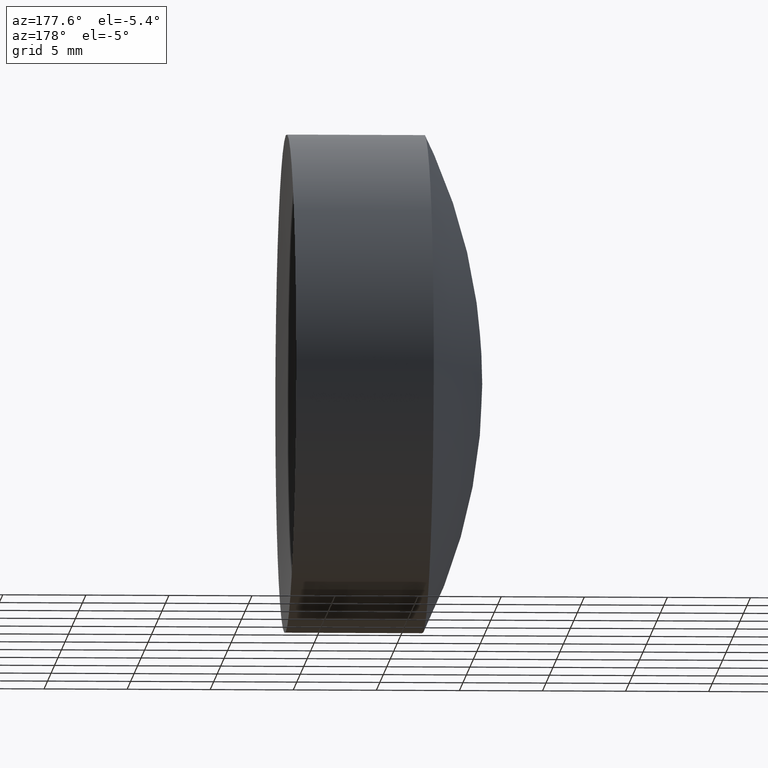
[diagram: clean part render]
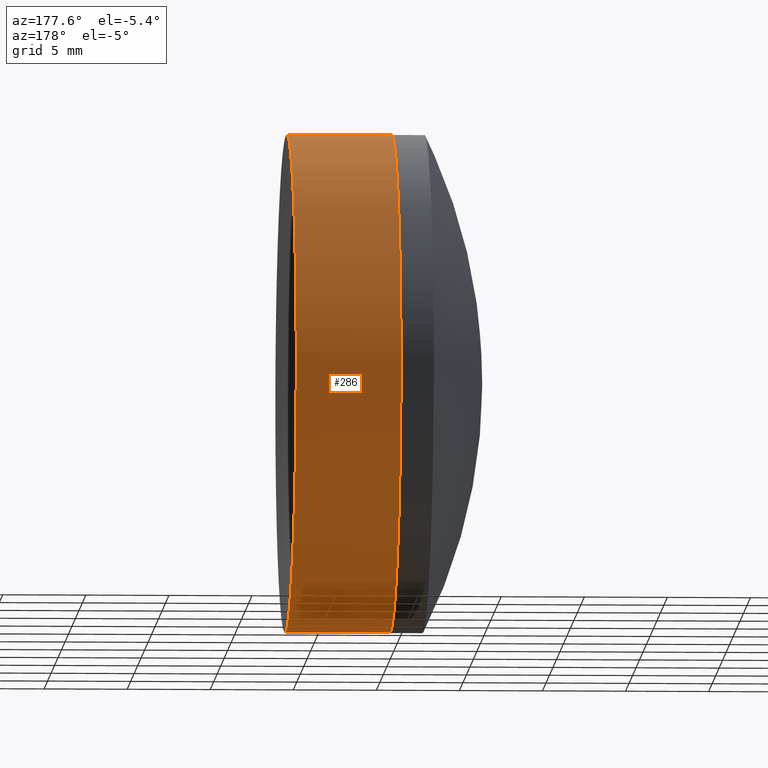
[diagram: same view with one face highlighted and labeled with its STEP entity id]
A machine part, auxiliary view. The second image highlights one B-rep face of the part: STEP entity #286.
In plain terms, the highlighted cylindrical surface (partial cylindrical patch) has radius 15 mm, axis along (-1, -0, -0).
Its self-contained STEP definition (entity closure, byte-faithful):
#2 = FACE_OUTER_BOUND ( 'NONE', #238, .T. ) ;
#21 = CARTESIAN_POINT ( 'NONE',  ( 106.7084432076796400, 0.0000000000000000000, 0.0000000000000000000 ) ) ;
#53 = DIRECTION ( 'NONE',  ( 0.0000000000000000000, 0.0000000000000000000, 1.000000000000000000 ) ) ;
#71 = CIRCLE ( 'NONE', #112, 15.00000000000000900 ) ;
#88 = CARTESIAN_POINT ( 'NONE',  ( -0.5519199926577972300, 0.0000000000000000000, 15.00000000000000900 ) ) ;
#93 = CARTESIAN_POINT ( 'NONE',  ( -0.5519199926577972300, 0.0000000000000000000, 0.0000000000000000000 ) ) ;
#101 = CARTESIAN_POINT ( 'NONE',  ( 100.3989811747571500, 0.0000000000000000000, 0.0000000000000000000 ) ) ;
#105 = DIRECTION ( 'NONE',  ( -1.000000000000000000, -0.0000000000000000000, -0.0000000000000000000 ) ) ;
#106 = DIRECTION ( 'NONE',  ( -1.000000000000000000, -0.0000000000000000000, -0.0000000000000000000 ) ) ;
#112 = AXIS2_PLACEMENT_3D ( 'NONE', #21, #106, #53 ) ;
#117 = CARTESIAN_POINT ( 'NONE',  ( 106.7084432076796400, -1.836970198721022100E-015, 14.99999999999994000 ) ) ;
#118 = AXIS2_PLACEMENT_3D ( 'NONE', #101, #253, #254 ) ;
#122 = DIRECTION ( 'NONE',  ( -1.000000000000000000, -0.0000000000000000000, -0.0000000000000000000 ) ) ;
#124 = AXIS2_PLACEMENT_3D ( 'NONE', #93, #197, #217 ) ;
#127 = ORIENTED_EDGE ( 'NONE', *, *, #303, .F. ) ;
#129 = VERTEX_POINT ( 'NONE', #153 ) ;
#145 = VECTOR ( 'NONE', #105, 1000.000000000000000 ) ;
#153 = CARTESIAN_POINT ( 'NONE',  ( 100.3989811747571500, 1.836970198721031200E-015, -15.00000000000001100 ) ) ;
#159 = EDGE_CURVE ( 'NONE', #236, #336, #258, .T. ) ;
#169 = CIRCLE ( 'NONE', #118, 15.00000000000000900 ) ;
#170 = ORIENTED_EDGE ( 'NONE', *, *, #249, .T. ) ;
#172 = CARTESIAN_POINT ( 'NONE',  ( 100.3989811747571500, 0.0000000000000000000, 15.00000000000001100 ) ) ;
#173 = VERTEX_POINT ( 'NONE', #276 ) ;
#197 = DIRECTION ( 'NONE',  ( -1.000000000000000000, -0.0000000000000000000, -0.0000000000000000000 ) ) ;
#198 = ORIENTED_EDGE ( 'NONE', *, *, #159, .F. ) ;
#217 = DIRECTION ( 'NONE',  ( 0.0000000000000000000, 0.0000000000000000000, 1.000000000000000000 ) ) ;
#236 = VERTEX_POINT ( 'NONE', #117 ) ;
#238 = EDGE_LOOP ( 'NONE', ( #312, #170, #127, #198 ) ) ;
#249 = EDGE_CURVE ( 'NONE', #173, #129, #328, .T. ) ;
#253 = DIRECTION ( 'NONE',  ( -1.000000000000000000, -0.0000000000000000000, -0.0000000000000000000 ) ) ;
#254 = DIRECTION ( 'NONE',  ( 0.0000000000000000000, 0.0000000000000000000, 1.000000000000000000 ) ) ;
#258 = LINE ( 'NONE', #88, #145 ) ;
#264 = VECTOR ( 'NONE', #122, 1000.000000000000000 ) ;
#276 = CARTESIAN_POINT ( 'NONE',  ( 106.7084432076796400, 0.0000000000000000000, -14.99999999999994000 ) ) ;
#286 = ADVANCED_FACE ( 'NONE', ( #2 ), #314, .T. ) ;
#297 = CARTESIAN_POINT ( 'NONE',  ( -0.5519199926577972300, 1.836970198721030800E-015, -15.00000000000000900 ) ) ;
#303 = EDGE_CURVE ( 'NONE', #336, #129, #169, .T. ) ;
#312 = ORIENTED_EDGE ( 'NONE', *, *, #321, .T. ) ;
#314 = CYLINDRICAL_SURFACE ( 'NONE', #124, 15.00000000000000900 ) ;
#321 = EDGE_CURVE ( 'NONE', #236, #173, #71, .T. ) ;
#328 = LINE ( 'NONE', #297, #264 ) ;
#336 = VERTEX_POINT ( 'NONE', #172 ) ;